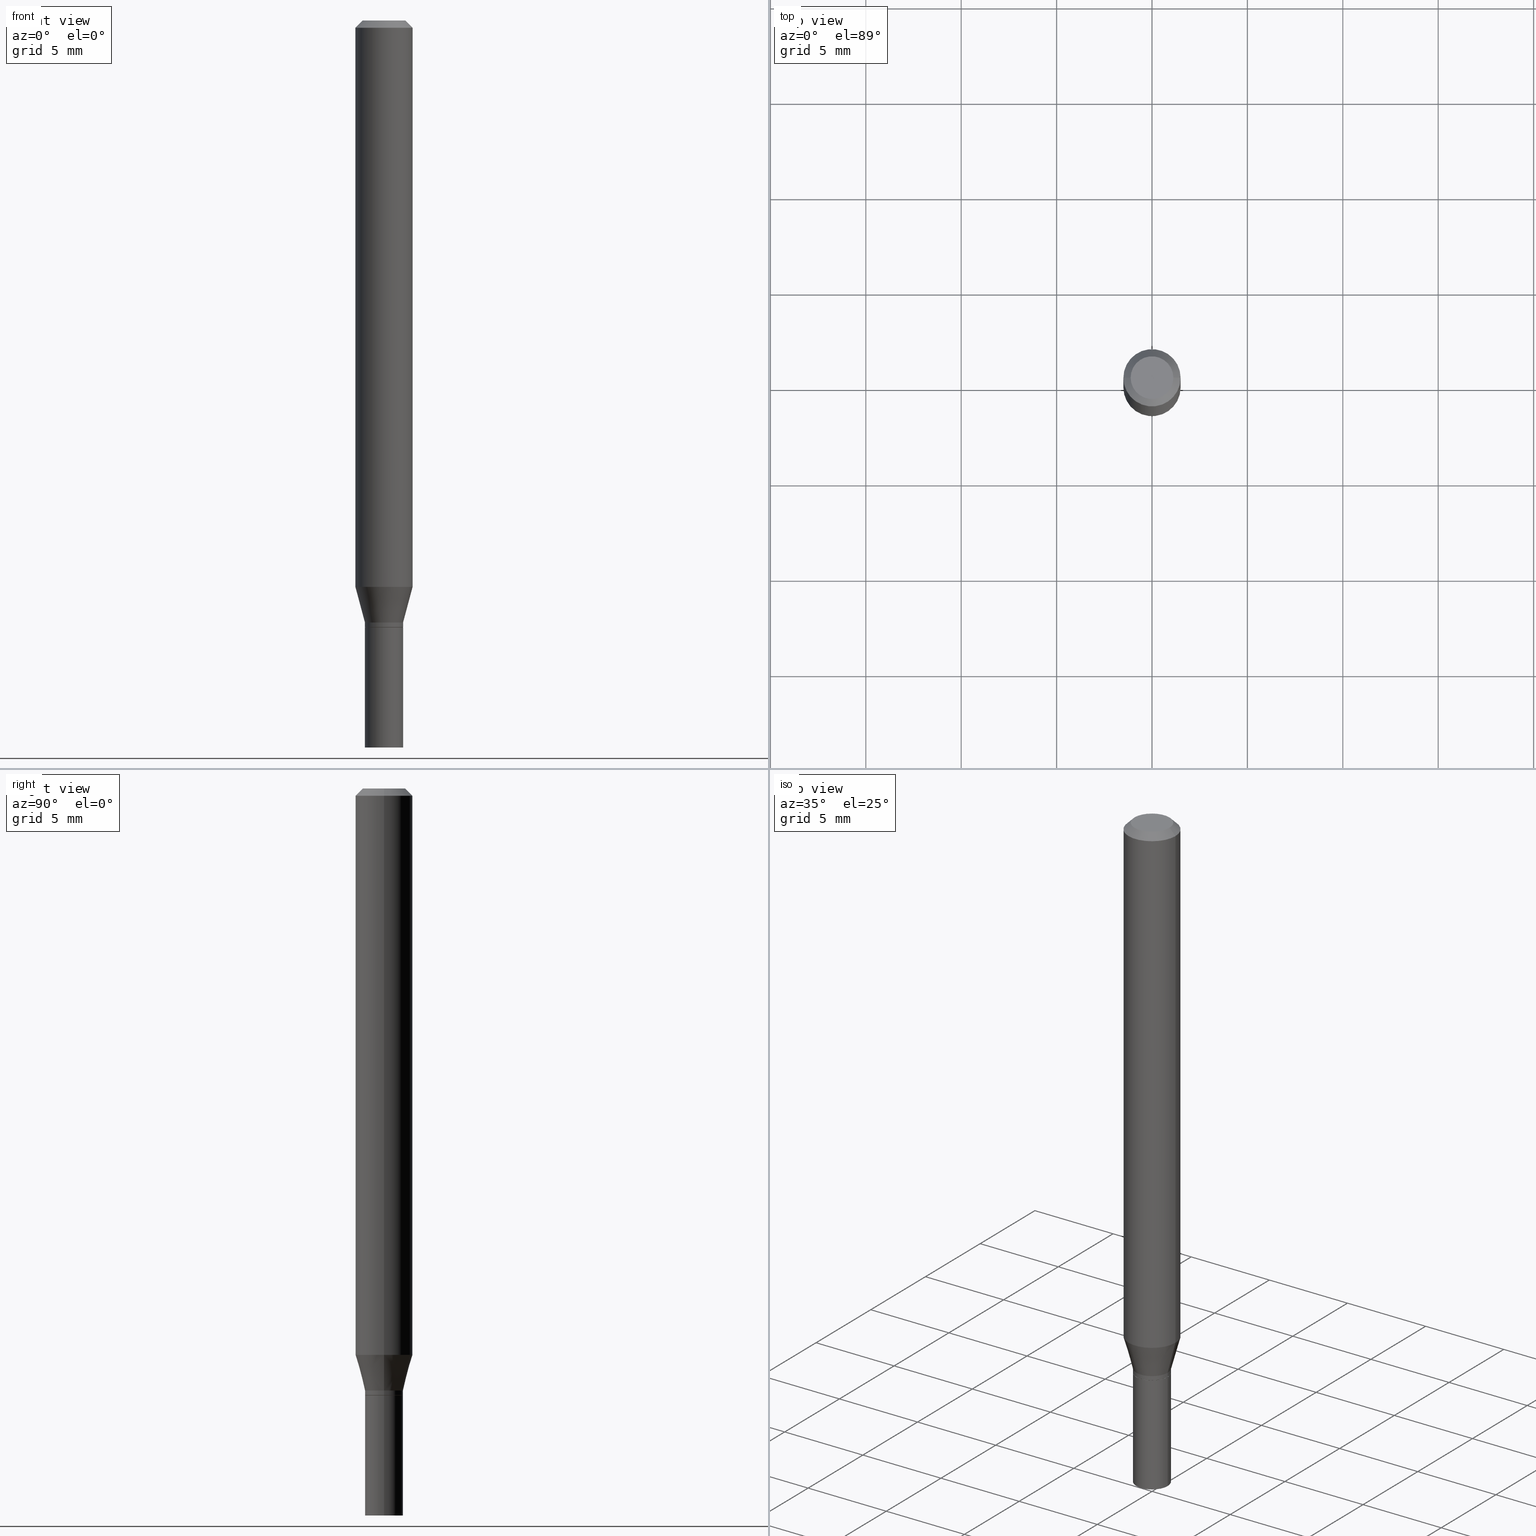
[diagram: canonical four-view strip — front | top / right | iso, engineering-drawing reading convention]
A machine part, canonical four-view strip (front | top / right | iso — engineering-drawing reading convention). The complete STEP part file that produces these views, byte-faithful:
ISO-10303-21;
HEADER;
FILE_DESCRIPTION (( 'STEP AP203' ),
    '1' );
FILE_NAME ('48502.STEP',
    '2024-03-12T19:26:06',
    ( '' ),
    ( '' ),
    'SwSTEP 2.0',
    'SolidWorks 2023',
    '' );
FILE_SCHEMA (( 'CONFIG_CONTROL_DESIGN' ));
ENDSEC;

DATA;
#1 = CARTESIAN_POINT ( 'NONE',  ( 3.061726945343791391E-29, -4.371334636231619274E-15, -1.252000000000000224 ) ) ;
#2 = CARTESIAN_POINT ( 'NONE',  ( -0.03885000000000000259, -4.095288783388819989E-15, -1.252000000000000224 ) ) ;
#3 = ORIENTED_EDGE ( 'NONE', *, *, #120, .F. ) ;
#4 = CARTESIAN_POINT ( 'NONE',  ( -0.03934999999999993364, -4.056821256321588230E-15, -1.241999999999999993 ) ) ;
#5 = VERTEX_POINT ( 'NONE', #148 ) ;
#6 = PERSON_AND_ORGANIZATION ( #271, #61 ) ;
#7 = DIRECTION ( 'NONE',  ( 1.000000000000000000, -6.982962677686269077E-15, 0.000000000000000000 ) ) ;
#8 = ORIENTED_EDGE ( 'NONE', *, *, #289, .F. ) ;
#9 = PERSON_AND_ORGANIZATION ( #271, #61 ) ;
#10 = APPROVAL ( #161, 'UNSPECIFIED' ) ;
#11 = DIRECTION ( 'NONE',  ( 1.000000000000000000, -6.982962677686266711E-15, 4.876176775795935793E-29 ) ) ;
#12 = ADVANCED_FACE ( 'NONE', ( #287 ), #362, .F. ) ;
#13 = AXIS2_PLACEMENT_3D ( 'NONE', #198, #397, #140 ) ;
#14 = DIRECTION ( 'NONE',  ( 1.000000000000000000, -6.982962677686273021E-15, 0.000000000000000000 ) ) ;
#15 = AXIS2_PLACEMENT_3D ( 'NONE', #126, #82, #361 ) ;
#16 = DIRECTION ( 'NONE',  ( -2.445468806185136597E-29, 3.491481338843145583E-15, 1.000000000000000000 ) ) ;
#17 = DIRECTION ( 'NONE',  ( 1.000000000000000000, -6.982962677686256455E-15, 0.000000000000000000 ) ) ;
#18 = CARTESIAN_POINT ( 'NONE',  ( 0.000000000000000000, 0.000000000000000000, 0.000000000000000000 ) ) ;
#19 = FACE_OUTER_BOUND ( 'NONE', #143, .T. ) ;
#20 = DIRECTION ( 'NONE',  ( 1.000000000000000000, -6.982962677686266711E-15, 0.000000000000000000 ) ) ;
#21 = DIRECTION ( 'NONE',  ( -2.445468806185136877E-29, 3.491481338843145188E-15, 1.000000000000000000 ) ) ;
#22 = AXIS2_PLACEMENT_3D ( 'NONE', #355, #252, #406 ) ;
#23 = CC_DESIGN_APPROVAL ( #419, ( #41 ) ) ;
#24 = DIRECTION ( 'NONE',  ( -2.445468806185136597E-29, 3.491481338843145583E-15, 1.000000000000000000 ) ) ;
#25 = ADVANCED_FACE ( 'NONE', ( #55 ), #110, .T. ) ;
#26 = AXIS2_PLACEMENT_3D ( 'NONE', #253, #407, #321 ) ;
#27 = CARTESIAN_POINT ( 'NONE',  ( 0.05904999999999999832, -4.123439461173740327E-16, 2.879382386107500220E-30 ) ) ;
#28 = PRODUCT_DEFINITION_FORMATION_WITH_SPECIFIED_SOURCE ( 'ANY', '', #146, .NOT_KNOWN. ) ;
#29 = EDGE_CURVE ( 'NONE', #300, #63, #363, .T. ) ;
#30 = ORIENTED_EDGE ( 'NONE', *, *, #326, .T. ) ;
#31 = CARTESIAN_POINT ( 'NONE',  ( 0.000000000000000000, 0.000000000000000000, 0.000000000000000000 ) ) ;
#32 = CALENDAR_DATE ( 2024, 12, 3 ) ;
#33 = CARTESIAN_POINT ( 'NONE',  ( 3.668203209277705088E-31, -5.237222008264718399E-17, -0.01499999999999999944 ) ) ;
#34 = AXIS2_PLACEMENT_3D ( 'NONE', #236, #239, #304 ) ;
#35 = DIRECTION ( 'NONE',  ( 1.000000000000000000, -6.982962677686269077E-15, 0.000000000000000000 ) ) ;
#36 = DIRECTION ( 'NONE',  ( -0.2588190451025224603, 5.211531920934556564E-15, 0.9659258262890678681 ) ) ;
#37 = ORIENTED_EDGE ( 'NONE', *, *, #68, .T. ) ;
#38 = CALENDAR_DATE ( 2024, 12, 3 ) ;
#39 = ORIENTED_EDGE ( 'NONE', *, *, #147, .F. ) ;
#40 = PERSON_AND_ORGANIZATION ( #271, #61 ) ;
#41 = PRODUCT_DEFINITION ( 'UNKNOWN', '', #28, #338 ) ;
#42 = ORIENTED_EDGE ( 'NONE', *, *, #88, .F. ) ;
#43 = PERSON_AND_ORGANIZATION ( #271, #61 ) ;
#44 = AXIS2_PLACEMENT_3D ( 'NONE', #18, #328, #414 ) ;
#45 = AXIS2_PLACEMENT_3D ( 'NONE', #370, #432, #436 ) ;
#46 = ORIENTED_EDGE ( 'NONE', *, *, #326, .F. ) ;
#47 = EDGE_CURVE ( 'NONE', #63, #168, #446, .T. ) ;
#48 = DIRECTION ( 'NONE',  ( 1.000000000000000000, -6.982962677686256455E-15, 0.000000000000000000 ) ) ;
#49 = LINE ( 'NONE', #286, #335 ) ;
#50 = DATE_TIME_ROLE ( 'classification_date' ) ;
#51 = DIRECTION ( 'NONE',  ( -2.445468806185136597E-29, 3.491481338843145583E-15, 1.000000000000000000 ) ) ;
#52 = DIRECTION ( 'NONE',  ( 2.438088387897960049E-29, -3.491481338843145188E-15, -1.000000000000000000 ) ) ;
#53 = PERSON_AND_ORGANIZATION_ROLE ( 'design_owner' ) ;
#54 = AXIS2_PLACEMENT_3D ( 'NONE', #112, #245, #214 ) ;
#55 = FACE_OUTER_BOUND ( 'NONE', #342, .T. ) ;
#56 = CARTESIAN_POINT ( 'NONE',  ( 0.03934999999999993364, -2.747795813669541281E-16, 1.918775561275697570E-30 ) ) ;
#57 = CIRCLE ( 'NONE', #422, 0.03935000000000000303 ) ;
#58 = PRODUCT_RELATED_PRODUCT_CATEGORY ( 'detail', '', ( #146 ) ) ;
#59 = ORIENTED_EDGE ( 'NONE', *, *, #113, .F. ) ;
#60 = CIRCLE ( 'NONE', #26, 0.03885000000000000259 ) ;
#61 = ORGANIZATION ( 'UNSPECIFIED', 'UNSPECIFIED', '' ) ;
#62 = DIRECTION ( 'NONE',  ( -2.445468806185136597E-29, 3.491481338843145583E-15, 1.000000000000000000 ) ) ;
#63 = VERTEX_POINT ( 'NONE', #441 ) ;
#64 = COORDINATED_UNIVERSAL_TIME_OFFSET ( 5, 0, .BEHIND. ) ;
#65 = EDGE_LOOP ( 'NONE', ( #400, #307 ) ) ;
#66 = UNCERTAINTY_MEASURE_WITH_UNIT (LENGTH_MEASURE( 1.000000000000000082E-05 ), #368, 'distance_accuracy_value', 'NONE');
#67 = VERTEX_POINT ( 'NONE', #79 ) ;
#68 = EDGE_CURVE ( 'NONE', #272, #386, #375, .T. ) ;
#69 = APPROVAL_DATE_TIME ( #277, #419 ) ;
#70 = DIRECTION ( 'NONE',  ( -2.445468806185136597E-29, 3.491481338843145583E-15, 1.000000000000000000 ) ) ;
#71 = ORIENTED_EDGE ( 'NONE', *, *, #279, .F. ) ;
#72 = EDGE_CURVE ( 'NONE', #234, #300, #402, .T. ) ;
#73 = EDGE_LOOP ( 'NONE', ( #46, #395, #434, #369 ) ) ;
#74 = AXIS2_PLACEMENT_3D ( 'NONE', #366, #211, #394 ) ;
#75 = FACE_OUTER_BOUND ( 'NONE', #73, .T. ) ;
#76 = LOCAL_TIME ( 15, 26, 6.000000000000000000, #64 ) ;
#77 = EDGE_CURVE ( 'NONE', #206, #67, #92, .T. ) ;
#78 = ORIENTED_EDGE ( 'NONE', *, *, #29, .F. ) ;
#79 = CARTESIAN_POINT ( 'NONE',  ( -0.03934999999999992670, -4.089990329040599164E-15, -1.251500000000000279 ) ) ;
#80 = DIRECTION ( 'NONE',  ( 1.000000000000000000, -6.982962677686265922E-15, 4.819687581474398999E-29 ) ) ;
#81 = FACE_OUTER_BOUND ( 'NONE', #225, .T. ) ;
#82 = DIRECTION ( 'NONE',  ( -2.445468806185136597E-29, 3.491481338843145583E-15, 1.000000000000000000 ) ) ;
#83 = AXIS2_PLACEMENT_3D ( 'NONE', #219, #111, #20 ) ;
#84 = CIRCLE ( 'NONE', #448, 0.03885000000000000259 ) ;
#85 = DIRECTION ( 'NONE',  ( 1.000000000000000000, -6.982962677686266711E-15, 4.876176775795935793E-29 ) ) ;
#86 = CC_DESIGN_DATE_AND_TIME_ASSIGNMENT ( #269, #235, ( #41 ) ) ;
#87 = CARTESIAN_POINT ( 'NONE',  ( 2.857477964771687854E-29, -4.079721223563435908E-15, -1.168478599090893466 ) ) ;
#88 = EDGE_CURVE ( 'NONE', #300, #234, #299, .T. ) ;
#89 = AXIS2_PLACEMENT_3D ( 'NONE', #450, #443, #426 ) ;
#90 = DIRECTION ( 'NONE',  ( -2.445468806185136597E-29, 3.491481338843145583E-15, 1.000000000000000000 ) ) ;
#91 = VERTEX_POINT ( 'NONE', #129 ) ;
#92 = CIRCLE ( 'NONE', #13, 0.03934999999999992670 ) ;
#93 = CALENDAR_DATE ( 2024, 12, 3 ) ;
#94 = ORIENTED_EDGE ( 'NONE', *, *, #47, .T. ) ;
#95 = LINE ( 'NONE', #344, #154 ) ;
#96 = EDGE_CURVE ( 'NONE', #274, #206, #266, .T. ) ;
#97 = ORIENTED_EDGE ( 'NONE', *, *, #213, .F. ) ;
#98 = CIRCLE ( 'NONE', #83, 0.05904999999999999832 ) ;
#99 = FACE_OUTER_BOUND ( 'NONE', #164, .T. ) ;
#100 = CARTESIAN_POINT ( 'NONE',  ( -0.03934999999999993364, -3.858483497209341928E-15, -1.241999999999999993 ) ) ;
#101 = ORIENTED_EDGE ( 'NONE', *, *, #425, .F. ) ;
#102 = ADVANCED_FACE ( 'NONE', ( #424 ), #184, .T. ) ;
#103 = CARTESIAN_POINT ( 'NONE',  ( 0.04404999999999999888, -3.798447818264454163E-16, 3.533548453838733521E-16 ) ) ;
#104 = CARTESIAN_POINT ( 'NONE',  ( -8.641182519006283330E-45, 1.233731848647590289E-30, 3.533548453838708869E-16 ) ) ;
#105 = VERTEX_POINT ( 'NONE', #390 ) ;
#106 = PERSON_AND_ORGANIZATION_ROLE ( 'creator' ) ;
#107 = ORIENTED_EDGE ( 'NONE', *, *, #228, .T. ) ;
#108 = CARTESIAN_POINT ( 'NONE',  ( 2.857477964771687854E-29, -4.079721223563435908E-15, -1.168478599090893466 ) ) ;
#109 = AXIS2_PLACEMENT_3D ( 'NONE', #310, #210, #7 ) ;
#110 = CYLINDRICAL_SURFACE ( 'NONE', #44, 0.05904999999999999832 ) ;
#111 = DIRECTION ( 'NONE',  ( -2.445468806185136597E-29, 3.491481338843145583E-15, 1.000000000000000000 ) ) ;
#112 = CARTESIAN_POINT ( 'NONE',  ( 3.060504210940699150E-29, -4.369588895562197771E-15, -1.251500000000000279 ) ) ;
#113 = EDGE_CURVE ( 'NONE', #91, #67, #465, .T. ) ;
#114 = DIRECTION ( 'NONE',  ( -0.7071067811865392461, 2.468850131082170286E-15, -0.7071067811865557884 ) ) ;
#115 = CONICAL_SURFACE ( 'NONE', #201, 0.03885000000000000259, 0.7853981633974739252 ) ;
#116 = SECURITY_CLASSIFICATION ( '', '', #314 ) ;
#117 = EDGE_CURVE ( 'NONE', #237, #272, #431, .T. ) ;
#118 = CYLINDRICAL_SURFACE ( 'NONE', #89, 0.03935000000000000303 ) ;
#119 = DIRECTION ( 'NONE',  ( -1.000000000000000000, 6.982962677686265922E-15, -4.876176775795935793E-29 ) ) ;
#120 = EDGE_CURVE ( 'NONE', #105, #386, #95, .T. ) ;
#121 = LENGTH_MEASURE_WITH_UNIT ( LENGTH_MEASURE( 0.02539999999999999897 ), #409 );
#122 = ORIENTED_EDGE ( 'NONE', *, *, #181, .T. ) ;
#123 = VECTOR ( 'NONE', #135, 39.37007874015748143 ) ;
#124 = ORIENTED_EDGE ( 'NONE', *, *, #258, .F. ) ;
#125 = AXIS2_PLACEMENT_3D ( 'NONE', #218, #90, #17 ) ;
#126 = CARTESIAN_POINT ( 'NONE',  ( 0.000000000000000000, 0.000000000000000000, 0.000000000000000000 ) ) ;
#127 = ADVANCED_FACE ( 'NONE', ( #99 ), #282, .T. ) ;
#128 = DIRECTION ( 'NONE',  ( -2.445468806185136597E-29, 3.491481338843145583E-15, 1.000000000000000000 ) ) ;
#129 = CARTESIAN_POINT ( 'NONE',  ( -0.03885000000000000259, -4.092639556214709577E-15, -1.252000000000000224 ) ) ;
#130 = ORIENTED_EDGE ( 'NONE', *, *, #96, .T. ) ;
#131 = CC_DESIGN_APPROVAL ( #412, ( #28 ) ) ;
#132 = DIRECTION ( 'NONE',  ( -1.000000000000000000, 6.982962677686266711E-15, 0.000000000000000000 ) ) ;
#133 = ORIENTED_EDGE ( 'NONE', *, *, #68, .F. ) ;
#134 = DIRECTION ( 'NONE',  ( 1.000000000000000000, -6.982962677686256455E-15, 0.000000000000000000 ) ) ;
#135 = DIRECTION ( 'NONE',  ( -0.7071067811865656694, 7.493145998870420424E-15, 0.7071067811865294761 ) ) ;
#136 = CARTESIAN_POINT ( 'NONE',  ( 0.03935000000000000303, -5.512001589631673094E-15, -1.500000000000000222 ) ) ;
#137 = ORIENTED_EDGE ( 'NONE', *, *, #117, .F. ) ;
#138 = ORIENTED_EDGE ( 'NONE', *, *, #47, .F. ) ;
#139 = CC_DESIGN_PERSON_AND_ORGANIZATION_ASSIGNMENT ( #43, #170, ( #28 ) ) ;
#140 = DIRECTION ( 'NONE',  ( 1.000000000000000000, -6.982962677686258033E-15, 0.000000000000000000 ) ) ;
#141 = ORIENTED_EDGE ( 'NONE', *, *, #181, .F. ) ;
#142 = PERSON_AND_ORGANIZATION_ROLE ( 'classification_officer' ) ;
#143 = EDGE_LOOP ( 'NONE', ( #3, #296, #403, #212 ) ) ;
#144 = CARTESIAN_POINT ( 'NONE',  ( -8.641182519006283330E-45, 1.233731848647590289E-30, 3.533548453838708869E-16 ) ) ;
#145 = DIRECTION ( 'NONE',  ( -2.445468806185136597E-29, 3.491481338843145583E-15, 1.000000000000000000 ) ) ;
#146 = PRODUCT ( '48502', '48502', '', ( #404 ) ) ;
#147 = EDGE_CURVE ( 'NONE', #91, #274, #60, .T. ) ;
#148 = CARTESIAN_POINT ( 'NONE',  ( -0.04404999999999999888, 3.337856159934040055E-16, 3.533548453838686682E-16 ) ) ;
#149 = ADVANCED_FACE ( 'NONE', ( #81 ), #215, .F. ) ;
#150 = AXIS2_PLACEMENT_3D ( 'NONE', #381, #62, #232 ) ;
#151 = DIRECTION ( 'NONE',  ( 1.000000000000000000, -6.982962677686265922E-15, 4.876176775795935793E-29 ) ) ;
#152 = APPLICATION_PROTOCOL_DEFINITION ( 'international standard', 'config_control_design', 1994, #421 ) ;
#153 = EDGE_CURVE ( 'NONE', #63, #188, #451, .T. ) ;
#154 = VECTOR ( 'NONE', #240, 39.37007874015748143 ) ;
#155 = CONICAL_SURFACE ( 'NONE', #125, 0.03885000000000000259, 0.7853981633974739252 ) ;
#156 = EDGE_LOOP ( 'NONE', ( #101, #39 ) ) ;
#157 = CARTESIAN_POINT ( 'NONE',  ( 3.668203209277704895E-29, -5.237222008264718177E-15, -1.500000000000000222 ) ) ;
#158 = CC_DESIGN_PERSON_AND_ORGANIZATION_ASSIGNMENT ( #6, #142, ( #116 ) ) ;
#159 = EDGE_LOOP ( 'NONE', ( #349, #193, #280, #398 ) ) ;
#160 = EDGE_CURVE ( 'NONE', #386, #272, #57, .T. ) ;
#161 = APPROVAL_STATUS ( 'not_yet_approved' ) ;
#162 = DIRECTION ( 'NONE',  ( 2.445468806185136597E-29, -3.491481338843145583E-15, -1.000000000000000000 ) ) ;
#163 = CARTESIAN_POINT ( 'NONE',  ( 0.03935000000000000303, -4.646114217598574191E-15, -1.252000000000000224 ) ) ;
#164 = EDGE_LOOP ( 'NONE', ( #311, #30, #42, #378 ) ) ;
#165 = COORDINATED_UNIVERSAL_TIME_OFFSET ( 5, 0, .BEHIND. ) ;
#166 = ORIENTED_EDGE ( 'NONE', *, *, #442, .F. ) ;
#167 = PERSON_AND_ORGANIZATION ( #271, #61 ) ;
#168 = VERTEX_POINT ( 'NONE', #461 ) ;
#169 = AXIS2_PLACEMENT_3D ( 'NONE', #356, #52, #177 ) ;
#170 = PERSON_AND_ORGANIZATION_ROLE ( 'design_supplier' ) ;
#171 = CC_DESIGN_APPROVAL ( #10, ( #116 ) ) ;
#172 = ORIENTED_EDGE ( 'NONE', *, *, #153, .T. ) ;
#173 = FACE_OUTER_BOUND ( 'NONE', #65, .T. ) ;
#174 = PERSON_AND_ORGANIZATION ( #271, #61 ) ;
#175 = DIRECTION ( 'NONE',  ( 0.2588190451025224603, 1.565188264969613685E-15, 0.9659258262890678681 ) ) ;
#176 = ADVANCED_FACE ( 'NONE', ( #371 ), #115, .T. ) ;
#177 = DIRECTION ( 'NONE',  ( -1.000000000000000000, 6.982962677686265922E-15, -4.876176775795935793E-29 ) ) ;
#178 = ADVANCED_FACE ( 'NONE', ( #173 ), #308, .F. ) ;
#179 = AXIS2_PLACEMENT_3D ( 'NONE', #320, #256, #151 ) ;
#180 = AXIS2_PLACEMENT_3D ( 'NONE', #365, #331, #187 ) ;
#181 = EDGE_CURVE ( 'NONE', #188, #259, #392, .T. ) ;
#182 =( NAMED_UNIT ( * ) PLANE_ANGLE_UNIT ( ) SI_UNIT ( $, .RADIAN. ) );
#183 = APPLICATION_CONTEXT ( 'configuration controlled 3d designs of mechanical parts and assemblies' ) ;
#184 = CONICAL_SURFACE ( 'NONE', #150, 0.03934999999999993364, 0.2617993877991511842 ) ;
#185 = AXIS2_PLACEMENT_3D ( 'NONE', #420, #458, #380 ) ;
#186 = MANIFOLD_SOLID_BREP ( 'Body-Move/Copy2[2]', #359 ) ;
#187 = DIRECTION ( 'NONE',  ( 1.000000000000000000, -6.982962677686269077E-15, 0.000000000000000000 ) ) ;
#188 = VERTEX_POINT ( 'NONE', #327 ) ;
#189 = EDGE_CURVE ( 'NONE', #206, #300, #413, .T. ) ;
#190 = ORIENTED_EDGE ( 'NONE', *, *, #273, .F. ) ;
#191 = CC_DESIGN_PERSON_AND_ORGANIZATION_ASSIGNMENT ( #358, #53, ( #146 ) ) ;
#192 = AXIS2_PLACEMENT_3D ( 'NONE', #87, #24, #220 ) ;
#193 = ORIENTED_EDGE ( 'NONE', *, *, #113, .T. ) ;
#194 = AXIS2_PLACEMENT_3D ( 'NONE', #33, #162, #132 ) ;
#195 = CARTESIAN_POINT ( 'NONE',  ( -0.03935000000000000303, -4.524679755726570119E-15, -1.252000000000000224 ) ) ;
#196 = ADVANCED_FACE ( 'NONE', ( #449 ), #118, .T. ) ;
#197 = DIRECTION ( 'NONE',  ( 1.000000000000000000, -6.982962677686269077E-15, 0.000000000000000000 ) ) ;
#198 = CARTESIAN_POINT ( 'NONE',  ( 3.060504210940699150E-29, -4.369588895562197771E-15, -1.251500000000000279 ) ) ;
#199 = APPROVAL_DATE_TIME ( #384, #10 ) ;
#200 = ORIENTED_EDGE ( 'NONE', *, *, #153, .F. ) ;
#201 = AXIS2_PLACEMENT_3D ( 'NONE', #455, #346, #48 ) ;
#202 = EDGE_LOOP ( 'NONE', ( #429, #354, #138, #78 ) ) ;
#203 = COORDINATED_UNIVERSAL_TIME_OFFSET ( 5, 0, .BEHIND. ) ;
#204 = LINE ( 'NONE', #244, #221 ) ;
#205 = ORIENTED_EDGE ( 'NONE', *, *, #160, .T. ) ;
#206 = VERTEX_POINT ( 'NONE', #261 ) ;
#207 = AXIS2_PLACEMENT_3D ( 'NONE', #323, #16, #85 ) ;
#208 = APPROVAL_PERSON_ORGANIZATION ( #324, #419, #373 ) ;
#209 = COORDINATED_UNIVERSAL_TIME_OFFSET ( 5, 0, .BEHIND. ) ;
#210 = DIRECTION ( 'NONE',  ( -2.445468806185136597E-29, 3.491481338843145583E-15, 1.000000000000000000 ) ) ;
#211 = DIRECTION ( 'NONE',  ( -2.445468806185136597E-29, 3.491481338843145583E-15, 1.000000000000000000 ) ) ;
#212 = ORIENTED_EDGE ( 'NONE', *, *, #160, .F. ) ;
#213 = EDGE_CURVE ( 'NONE', #168, #259, #290, .T. ) ;
#214 = DIRECTION ( 'NONE',  ( 1.000000000000000000, -6.982962677686258033E-15, 0.000000000000000000 ) ) ;
#215 = PLANE ( 'NONE',  #169 ) ;
#216 = CARTESIAN_POINT ( 'NONE',  ( 3.037272257281939846E-29, -4.336419822843186836E-15, -1.241999999999999993 ) ) ;
#217 = CIRCLE ( 'NONE', #275, 0.04404999999999999888 ) ;
#218 = CARTESIAN_POINT ( 'NONE',  ( 3.061726945343791391E-29, -4.371334636231619274E-15, -1.252000000000000224 ) ) ;
#219 = CARTESIAN_POINT ( 'NONE',  ( 3.668203209277705088E-31, -5.237222008264718399E-17, -0.01499999999999999944 ) ) ;
#220 = DIRECTION ( 'NONE',  ( 1.000000000000000000, -6.982962677686273021E-15, 0.000000000000000000 ) ) ;
#221 = VECTOR ( 'NONE', #399, 39.37007874015748143 ) ;
#222 = CC_DESIGN_PERSON_AND_ORGANIZATION_ASSIGNMENT ( #40, #309, ( #28 ) ) ;
#223 = EDGE_LOOP ( 'NONE', ( #345, #464, #316, #8 ) ) ;
#224 = DIRECTION ( 'NONE',  ( 1.000000000000000000, -6.982962677686269077E-15, 0.000000000000000000 ) ) ;
#225 = EDGE_LOOP ( 'NONE', ( #37, #205 ) ) ;
#226 = FACE_OUTER_BOUND ( 'NONE', #268, .T. ) ;
#227 = CC_DESIGN_DATE_AND_TIME_ASSIGNMENT ( #353, #50, ( #116 ) ) ;
#228 = EDGE_CURVE ( 'NONE', #237, #105, #254, .T. ) ;
#229 = AXIS2_PLACEMENT_3D ( 'NONE', #216, #51, #408 ) ;
#230 = CONICAL_SURFACE ( 'NONE', #194, 0.05904999999999999832, 0.7853981633974366217 ) ;
#231 = APPLICATION_PROTOCOL_DEFINITION ( 'international standard', 'config_control_design', 1994, #183 ) ;
#232 = DIRECTION ( 'NONE',  ( 1.000000000000000000, -6.982962677686269077E-15, 0.000000000000000000 ) ) ;
#233 = DIRECTION ( 'NONE',  ( -2.445468806185136877E-29, 3.491481338843145188E-15, 1.000000000000000000 ) ) ;
#234 = VERTEX_POINT ( 'NONE', #100 ) ;
#235 = DATE_TIME_ROLE ( 'creation_date' ) ;
#236 = CARTESIAN_POINT ( 'NONE',  ( 3.061726945343791391E-29, -4.371334636231619274E-15, -1.252000000000000224 ) ) ;
#237 = VERTEX_POINT ( 'NONE', #136 ) ;
#238 = COORDINATED_UNIVERSAL_TIME_OFFSET ( 5, 0, .BEHIND. ) ;
#239 = DIRECTION ( 'NONE',  ( -2.438088387897960049E-29, 3.491481338843145188E-15, 1.000000000000000000 ) ) ;
#240 = DIRECTION ( 'NONE',  ( -2.445468806185136877E-29, 3.491481338843145188E-15, 1.000000000000000000 ) ) ;
#241 = VERTEX_POINT ( 'NONE', #103 ) ;
#242 = CC_DESIGN_PERSON_AND_ORGANIZATION_ASSIGNMENT ( #9, #106, ( #41 ) ) ;
#243 = CALENDAR_DATE ( 2024, 12, 3 ) ;
#244 = CARTESIAN_POINT ( 'NONE',  ( 0.05904999999999999832, -4.574846268510561447E-16, -0.01499999999999999944 ) ) ;
#245 = DIRECTION ( 'NONE',  ( -2.445468806185136597E-29, 3.491481338843145583E-15, 1.000000000000000000 ) ) ;
#246 = EDGE_LOOP ( 'NONE', ( #94, #454, #141, #200 ) ) ;
#247 = CYLINDRICAL_SURFACE ( 'NONE', #433, 0.03934999999999993364 ) ;
#248 = ADVANCED_FACE ( 'NONE', ( #75 ), #247, .T. ) ;
#249 = EDGE_LOOP ( 'NONE', ( #382, #302 ) ) ;
#250 = VECTOR ( 'NONE', #297, 39.37007874015748143 ) ;
#251 = EDGE_CURVE ( 'NONE', #234, #168, #391, .T. ) ;
#252 = DIRECTION ( 'NONE',  ( -2.445468806185136597E-29, 3.491481338843145583E-15, 1.000000000000000000 ) ) ;
#253 = CARTESIAN_POINT ( 'NONE',  ( 3.061726945343791391E-29, -4.371334636231619274E-15, -1.252000000000000224 ) ) ;
#254 = CIRCLE ( 'NONE', #109, 0.03935000000000000303 ) ;
#255 =( GEOMETRIC_REPRESENTATION_CONTEXT ( 3 ) GLOBAL_UNCERTAINTY_ASSIGNED_CONTEXT ( ( #66 ) ) GLOBAL_UNIT_ASSIGNED_CONTEXT ( ( #368, #182, #295 ) ) REPRESENTATION_CONTEXT ( 'NONE', 'WORKASPACE' ) );
#256 = DIRECTION ( 'NONE',  ( -2.438088387897960049E-29, 3.491481338843145188E-15, 1.000000000000000000 ) ) ;
#257 = CARTESIAN_POINT ( 'NONE',  ( -0.03934999999999993364, 2.795985665215989516E-16, -1.935600958015302139E-30 ) ) ;
#258 = EDGE_CURVE ( 'NONE', #241, #188, #204, .T. ) ;
#259 = VERTEX_POINT ( 'NONE', #401 ) ;
#260 = VECTOR ( 'NONE', #428, 39.37007874015748143 ) ;
#261 = CARTESIAN_POINT ( 'NONE',  ( 0.03934999999999992670, -4.644368476929151899E-15, -1.251500000000000279 ) ) ;
#262 = EDGE_CURVE ( 'NONE', #5, #241, #217, .T. ) ;
#263 = ORIENTED_EDGE ( 'NONE', *, *, #289, .T. ) ;
#264 = CARTESIAN_POINT ( 'NONE',  ( 3.061726945343791391E-29, -4.371334636231619274E-15, -1.252000000000000224 ) ) ;
#265 = ORIENTED_EDGE ( 'NONE', *, *, #273, .T. ) ;
#266 = LINE ( 'NONE', #298, #462 ) ;
#267 = APPROVAL_PERSON_ORGANIZATION ( #167, #412, #388 ) ;
#268 = EDGE_LOOP ( 'NONE', ( #166, #427, #122, #71 ) ) ;
#269 = DATE_AND_TIME ( #38, #313 ) ;
#270 = CARTESIAN_POINT ( 'NONE',  ( 0.03935000000000000303, -2.747795813669546211E-16, 1.918775561275701074E-30 ) ) ;
#271 = PERSON ( 'UNSPECIFIED', 'UNSPECIFIED', 'UNSPECIFIED', ('UNSPECIFIED'), ('UNSPECIFIED'), ('UNSPECIFIED') ) ;
#272 = VERTEX_POINT ( 'NONE', #163 ) ;
#273 = EDGE_CURVE ( 'NONE', #259, #188, #98, .T. ) ;
#274 = VERTEX_POINT ( 'NONE', #445 ) ;
#275 = AXIS2_PLACEMENT_3D ( 'NONE', #144, #281, #438 ) ;
#276 = CC_DESIGN_SECURITY_CLASSIFICATION ( #116, ( #28 ) ) ;
#277 = DATE_AND_TIME ( #243, #293 ) ;
#278 = ORIENTED_EDGE ( 'NONE', *, *, #120, .T. ) ;
#279 = EDGE_CURVE ( 'NONE', #5, #259, #49, .T. ) ;
#280 = ORIENTED_EDGE ( 'NONE', *, *, #77, .F. ) ;
#281 = DIRECTION ( 'NONE',  ( -2.445468806185136597E-29, 3.491481338843145583E-15, 1.000000000000000000 ) ) ;
#282 = CYLINDRICAL_SURFACE ( 'NONE', #207, 0.03934999999999993364 ) ;
#283 = VECTOR ( 'NONE', #175, 39.37007874015748143 ) ;
#284 = PRODUCT_DEFINITION_SHAPE ( 'NONE', 'NONE',  #41 ) ;
#285 = CARTESIAN_POINT ( 'NONE',  ( 0.03934999999999993364, -4.611199404210140965E-15, -1.241999999999999993 ) ) ;
#286 = CARTESIAN_POINT ( 'NONE',  ( -0.05904999999999999832, 3.599717260347268549E-16, -0.01499999999999999944 ) ) ;
#287 = FACE_OUTER_BOUND ( 'NONE', #249, .T. ) ;
#288 = CIRCLE ( 'NONE', #453, 0.04404999999999999888 ) ;
#289 = EDGE_CURVE ( 'NONE', #168, #63, #410, .T. ) ;
#290 = LINE ( 'NONE', #319, #292 ) ;
#291 = CARTESIAN_POINT ( 'NONE',  ( 0.03934999999999993364, -4.611199404210140965E-15, -1.241999999999999993 ) ) ;
#292 = VECTOR ( 'NONE', #233, 39.37007874015748143 ) ;
#293 = LOCAL_TIME ( 15, 26, 6.000000000000000000, #203 ) ;
#294 = DIMENSIONAL_EXPONENTS ( 1.000000000000000000, 0.000000000000000000, 0.000000000000000000, 0.000000000000000000, 0.000000000000000000, 0.000000000000000000, 0.000000000000000000 ) ;
#295 =( NAMED_UNIT ( * ) SI_UNIT ( $, .STERADIAN. ) SOLID_ANGLE_UNIT ( ) );
#296 = ORIENTED_EDGE ( 'NONE', *, *, #357, .T. ) ;
#297 = DIRECTION ( 'NONE',  ( -2.445468806185136877E-29, 3.491481338843145188E-15, 1.000000000000000000 ) ) ;
#298 = CARTESIAN_POINT ( 'NONE',  ( 0.03885000000000000259, -4.642622736259730395E-15, -1.252000000000000224 ) ) ;
#299 = CIRCLE ( 'NONE', #415, 0.03934999999999993364 ) ;
#300 = VERTEX_POINT ( 'NONE', #291 ) ;
#301 = DIRECTION ( 'NONE',  ( 2.438088387897960049E-29, -3.491481338843145188E-15, -1.000000000000000000 ) ) ;
#302 = ORIENTED_EDGE ( 'NONE', *, *, #357, .F. ) ;
#303 = CALENDAR_DATE ( 2024, 12, 3 ) ;
#304 = DIRECTION ( 'NONE',  ( 1.000000000000000000, -6.982962677686265922E-15, 4.876176775795935793E-29 ) ) ;
#305 = DIRECTION ( 'NONE',  ( 0.7071067811865656694, -2.468850131082446387E-15, 0.7071067811865294761 ) ) ;
#306 = CARTESIAN_POINT ( 'NONE',  ( 0.000000000000000000, 0.000000000000000000, 0.000000000000000000 ) ) ;
#307 = ORIENTED_EDGE ( 'NONE', *, *, #442, .T. ) ;
#308 = PLANE ( 'NONE',  #341 ) ;
#309 = PERSON_AND_ORGANIZATION_ROLE ( 'creator' ) ;
#310 = CARTESIAN_POINT ( 'NONE',  ( 3.668203209277704895E-29, -5.237222008264718177E-15, -1.500000000000000222 ) ) ;
#311 = ORIENTED_EDGE ( 'NONE', *, *, #77, .T. ) ;
#312 = AXIS2_PLACEMENT_3D ( 'NONE', #108, #145, #14 ) ;
#313 = LOCAL_TIME ( 15, 26, 6.000000000000000000, #238 ) ;
#314 = SECURITY_CLASSIFICATION_LEVEL ( 'unclassified' ) ;
#315 = DIRECTION ( 'NONE',  ( -2.445468806185136597E-29, 3.491481338843145583E-15, 1.000000000000000000 ) ) ;
#316 = ORIENTED_EDGE ( 'NONE', *, *, #29, .T. ) ;
#317 = APPROVAL_ROLE ( '' ) ;
#318 = CYLINDRICAL_SURFACE ( 'NONE', #45, 0.05904999999999999832 ) ;
#319 = CARTESIAN_POINT ( 'NONE',  ( -0.05904999999999999832, 4.195754854663391478E-16, -2.904631170795521892E-30 ) ) ;
#320 = CARTESIAN_POINT ( 'NONE',  ( 3.576687321579069994E-29, -5.368277968210015545E-15, -1.500000000000000222 ) ) ;
#321 = DIRECTION ( 'NONE',  ( 1.000000000000000000, -6.982962677686256455E-15, 0.000000000000000000 ) ) ;
#322 = CONICAL_SURFACE ( 'NONE', #180, 0.03934999999999993364, 0.2617993877991511842 ) ;
#323 = CARTESIAN_POINT ( 'NONE',  ( 0.000000000000000000, 0.000000000000000000, 0.000000000000000000 ) ) ;
#324 = PERSON_AND_ORGANIZATION ( #271, #61 ) ;
#325 = LINE ( 'NONE', #257, #411 ) ;
#326 = EDGE_CURVE ( 'NONE', #67, #234, #325, .T. ) ;
#327 = CARTESIAN_POINT ( 'NONE',  ( 0.05904999999999999832, -4.647161662000212105E-16, -0.01499999999999999944 ) ) ;
#328 = DIRECTION ( 'NONE',  ( -2.445468806185136597E-29, 3.491481338843145583E-15, 1.000000000000000000 ) ) ;
#329 = ADVANCED_FACE ( 'NONE', ( #416 ), #322, .T. ) ;
#330 = VECTOR ( 'NONE', #21, 39.37007874015748143 ) ;
#331 = DIRECTION ( 'NONE',  ( -2.445468806185136597E-29, 3.491481338843145583E-15, 1.000000000000000000 ) ) ;
#332 = ADVANCED_FACE ( 'NONE', ( #333 ), #155, .T. ) ;
#333 = FACE_OUTER_BOUND ( 'NONE', #159, .T. ) ;
#334 = APPROVAL_STATUS ( 'not_yet_approved' ) ;
#335 = VECTOR ( 'NONE', #114, 39.37007874015748143 ) ;
#336 = LOCAL_TIME ( 15, 26, 6.000000000000000000, #165 ) ;
#337 = EDGE_LOOP ( 'NONE', ( #107, #278, #133, #137 ) ) ;
#338 = DESIGN_CONTEXT ( 'detailed design', #183, 'design' ) ;
#339 = MANIFOLD_SOLID_BREP ( 'Body-Move/Copy2[1]', #447 ) ;
#340 = SHAPE_DEFINITION_REPRESENTATION ( #284, #387 ) ;
#341 = AXIS2_PLACEMENT_3D ( 'NONE', #396, #301, #119 ) ;
#342 = EDGE_LOOP ( 'NONE', ( #97, #263, #172, #190 ) ) ;
#343 = FACE_OUTER_BOUND ( 'NONE', #156, .T. ) ;
#344 = CARTESIAN_POINT ( 'NONE',  ( -0.03935000000000000303, 2.795985665215994447E-16, -1.935600958015305291E-30 ) ) ;
#345 = ORIENTED_EDGE ( 'NONE', *, *, #251, .F. ) ;
#346 = DIRECTION ( 'NONE',  ( -2.445468806185136597E-29, 3.491481338843145583E-15, 1.000000000000000000 ) ) ;
#347 = APPROVAL_DATE_TIME ( #430, #412 ) ;
#348 = ADVANCED_FACE ( 'NONE', ( #19 ), #452, .T. ) ;
#349 = ORIENTED_EDGE ( 'NONE', *, *, #425, .T. ) ;
#350 = APPROVAL_STATUS ( 'not_yet_approved' ) ;
#351 = ORIENTED_EDGE ( 'NONE', *, *, #457, .F. ) ;
#352 = CIRCLE ( 'NONE', #54, 0.03934999999999992670 ) ;
#353 = DATE_AND_TIME ( #32, #463 ) ;
#354 = ORIENTED_EDGE ( 'NONE', *, *, #251, .T. ) ;
#355 = CARTESIAN_POINT ( 'NONE',  ( 3.061726945343791391E-29, -4.371334636231619274E-15, -1.252000000000000224 ) ) ;
#356 = CARTESIAN_POINT ( 'NONE',  ( 2.747795813669852388E-16, 0.03934999999999563153, -1.252000000000000446 ) ) ;
#357 = EDGE_CURVE ( 'NONE', #105, #237, #405, .T. ) ;
#358 = PERSON_AND_ORGANIZATION ( #271, #61 ) ;
#359 = CLOSED_SHELL ( 'NONE', ( #127, #332, #360, #439, #329, #102, #25, #383, #178, #385, #176, #248 ) ) ;
#360 = ADVANCED_FACE ( 'NONE', ( #226 ), #393, .T. ) ;
#361 = DIRECTION ( 'NONE',  ( 1.000000000000000000, -6.982962677686266711E-15, 4.876176775795936353E-29 ) ) ;
#362 = PLANE ( 'NONE',  #179 ) ;
#363 = LINE ( 'NONE', #285, #283 ) ;
#364 = DIRECTION ( 'NONE',  ( 1.000000000000000000, 0.000000000000000000, 0.000000000000000000 ) ) ;
#365 = CARTESIAN_POINT ( 'NONE',  ( 3.037272257281939846E-29, -4.336419822843186836E-15, -1.241999999999999993 ) ) ;
#366 = CARTESIAN_POINT ( 'NONE',  ( 3.668203209277705088E-31, -5.237222008264718399E-17, -0.01499999999999999944 ) ) ;
#367 = DIRECTION ( 'NONE',  ( -2.445468806185136877E-29, 3.491481338843145188E-15, 1.000000000000000000 ) ) ;
#368 =( CONVERSION_BASED_UNIT ( 'INCH', #121 ) LENGTH_UNIT ( ) NAMED_UNIT ( #294 ) );
#369 = ORIENTED_EDGE ( 'NONE', *, *, #72, .F. ) ;
#370 = CARTESIAN_POINT ( 'NONE',  ( 0.000000000000000000, 0.000000000000000000, 0.000000000000000000 ) ) ;
#371 = FACE_OUTER_BOUND ( 'NONE', #372, .T. ) ;
#372 = EDGE_LOOP ( 'NONE', ( #59, #466, #130, #351 ) ) ;
#373 = APPROVAL_ROLE ( '' ) ;
#374 = PLANE ( 'NONE',  #34 ) ;
#375 = CIRCLE ( 'NONE', #22, 0.03935000000000000303 ) ;
#376 = CARTESIAN_POINT ( 'NONE',  ( 3.037272257281939846E-29, -4.336419822843186836E-15, -1.241999999999999993 ) ) ;
#377 = APPROVAL_PERSON_ORGANIZATION ( #174, #10, #317 ) ;
#378 = ORIENTED_EDGE ( 'NONE', *, *, #189, .F. ) ;
#379 = DIRECTION ( 'NONE',  ( -2.445468806185136597E-29, 3.491481338843145583E-15, 1.000000000000000000 ) ) ;
#380 = DIRECTION ( 'NONE',  ( -1.000000000000000000, 6.982962677686266711E-15, 0.000000000000000000 ) ) ;
#381 = CARTESIAN_POINT ( 'NONE',  ( 3.037272257281939846E-29, -4.336419822843186836E-15, -1.241999999999999993 ) ) ;
#382 = ORIENTED_EDGE ( 'NONE', *, *, #228, .F. ) ;
#383 = ADVANCED_FACE ( 'NONE', ( #456 ), #230, .T. ) ;
#384 = DATE_AND_TIME ( #93, #76 ) ;
#385 = ADVANCED_FACE ( 'NONE', ( #343 ), #374, .F. ) ;
#386 = VERTEX_POINT ( 'NONE', #195 ) ;
#387 = ADVANCED_BREP_SHAPE_REPRESENTATION ( '48502', ( #339, #186, #423 ), #255 ) ;
#388 = APPROVAL_ROLE ( '' ) ;
#389 = FACE_OUTER_BOUND ( 'NONE', #246, .T. ) ;
#390 = CARTESIAN_POINT ( 'NONE',  ( -0.03935000000000000303, -4.524679755726570119E-15, -1.500000000000000222 ) ) ;
#391 = LINE ( 'NONE', #4, #440 ) ;
#392 = CIRCLE ( 'NONE', #74, 0.05904999999999999832 ) ;
#393 = CONICAL_SURFACE ( 'NONE', #185, 0.05904999999999999832, 0.7853981633974366217 ) ;
#394 = DIRECTION ( 'NONE',  ( 1.000000000000000000, -6.982962677686266711E-15, 0.000000000000000000 ) ) ;
#395 = ORIENTED_EDGE ( 'NONE', *, *, #457, .T. ) ;
#396 = CARTESIAN_POINT ( 'NONE',  ( 3.075995059520799729E-16, 0.04404999999999999888, 2.287766971589489619E-17 ) ) ;
#397 = DIRECTION ( 'NONE',  ( -2.445468806185136597E-29, 3.491481338843145583E-15, 1.000000000000000000 ) ) ;
#398 = ORIENTED_EDGE ( 'NONE', *, *, #96, .F. ) ;
#399 = DIRECTION ( 'NONE',  ( 0.7071067811865392461, -7.319954787623227646E-15, -0.7071067811865557884 ) ) ;
#400 = ORIENTED_EDGE ( 'NONE', *, *, #262, .T. ) ;
#401 = CARTESIAN_POINT ( 'NONE',  ( -0.05904999999999999832, -1.646471236356702198E-15, -0.01499999999999999944 ) ) ;
#402 = CIRCLE ( 'NONE', #229, 0.03934999999999993364 ) ;
#403 = ORIENTED_EDGE ( 'NONE', *, *, #117, .T. ) ;
#404 = MECHANICAL_CONTEXT ( 'NONE', #421, 'mechanical' ) ;
#405 = CIRCLE ( 'NONE', #417, 0.03935000000000000303 ) ;
#406 = DIRECTION ( 'NONE',  ( 1.000000000000000000, -6.982962677686269077E-15, 0.000000000000000000 ) ) ;
#407 = DIRECTION ( 'NONE',  ( -2.445468806185136597E-29, 3.491481338843145583E-15, 1.000000000000000000 ) ) ;
#408 = DIRECTION ( 'NONE',  ( 1.000000000000000000, -6.982962677686269077E-15, 0.000000000000000000 ) ) ;
#409 =( LENGTH_UNIT ( ) NAMED_UNIT ( * ) SI_UNIT ( $, .METRE. ) );
#410 = CIRCLE ( 'NONE', #192, 0.05904999999999999832 ) ;
#411 = VECTOR ( 'NONE', #367, 39.37007874015748143 ) ;
#412 = APPROVAL ( #350, 'UNSPECIFIED' ) ;
#413 = LINE ( 'NONE', #56, #330 ) ;
#414 = DIRECTION ( 'NONE',  ( 1.000000000000000000, -6.982962677686266711E-15, 4.876176775795936353E-29 ) ) ;
#415 = AXIS2_PLACEMENT_3D ( 'NONE', #376, #459, #35 ) ;
#416 = FACE_OUTER_BOUND ( 'NONE', #202, .T. ) ;
#417 = AXIS2_PLACEMENT_3D ( 'NONE', #157, #379, #197 ) ;
#418 = DIRECTION ( 'NONE',  ( -2.445468806185136597E-29, 3.491481338843145583E-15, 1.000000000000000000 ) ) ;
#419 = APPROVAL ( #334, 'UNSPECIFIED' ) ;
#420 = CARTESIAN_POINT ( 'NONE',  ( 3.668203209277705088E-31, -5.237222008264718399E-17, -0.01499999999999999944 ) ) ;
#421 = APPLICATION_CONTEXT ( 'configuration controlled 3d designs of mechanical parts and assemblies' ) ;
#422 = AXIS2_PLACEMENT_3D ( 'NONE', #264, #418, #224 ) ;
#423 = AXIS2_PLACEMENT_3D ( 'NONE', #31, #444, #364 ) ;
#424 = FACE_OUTER_BOUND ( 'NONE', #223, .T. ) ;
#425 = EDGE_CURVE ( 'NONE', #274, #91, #84, .T. ) ;
#426 = DIRECTION ( 'NONE',  ( 1.000000000000000000, -6.982962677686266711E-15, 4.876176775795936353E-29 ) ) ;
#427 = ORIENTED_EDGE ( 'NONE', *, *, #258, .T. ) ;
#428 = DIRECTION ( 'NONE',  ( -2.445468806185136877E-29, 3.491481338843145188E-15, 1.000000000000000000 ) ) ;
#429 = ORIENTED_EDGE ( 'NONE', *, *, #88, .T. ) ;
#430 = DATE_AND_TIME ( #303, #336 ) ;
#431 = LINE ( 'NONE', #270, #260 ) ;
#432 = DIRECTION ( 'NONE',  ( -2.445468806185136597E-29, 3.491481338843145583E-15, 1.000000000000000000 ) ) ;
#433 = AXIS2_PLACEMENT_3D ( 'NONE', #306, #70, #11 ) ;
#434 = ORIENTED_EDGE ( 'NONE', *, *, #189, .T. ) ;
#435 = ORIENTED_EDGE ( 'NONE', *, *, #262, .F. ) ;
#436 = DIRECTION ( 'NONE',  ( 1.000000000000000000, -6.982962677686266711E-15, 4.876176775795936353E-29 ) ) ;
#437 = ORIENTED_EDGE ( 'NONE', *, *, #279, .T. ) ;
#438 = DIRECTION ( 'NONE',  ( 1.000000000000000000, -6.982962677686265922E-15, 4.819687581474398999E-29 ) ) ;
#439 = ADVANCED_FACE ( 'NONE', ( #389 ), #318, .T. ) ;
#440 = VECTOR ( 'NONE', #36, 39.37007874015748143 ) ;
#441 = CARTESIAN_POINT ( 'NONE',  ( 0.05904999999999999832, -4.492065169680810039E-15, -1.168478599090893466 ) ) ;
#442 = EDGE_CURVE ( 'NONE', #241, #5, #288, .T. ) ;
#443 = DIRECTION ( 'NONE',  ( -2.445468806185136597E-29, 3.491481338843145583E-15, 1.000000000000000000 ) ) ;
#444 = DIRECTION ( 'NONE',  ( 0.000000000000000000, 0.000000000000000000, 1.000000000000000000 ) ) ;
#445 = CARTESIAN_POINT ( 'NONE',  ( 0.03885000000000000259, -4.642622736259730395E-15, -1.252000000000000224 ) ) ;
#446 = CIRCLE ( 'NONE', #312, 0.05904999999999999832 ) ;
#447 = CLOSED_SHELL ( 'NONE', ( #196, #12, #348, #149 ) ) ;
#448 = AXIS2_PLACEMENT_3D ( 'NONE', #1, #128, #134 ) ;
#449 = FACE_OUTER_BOUND ( 'NONE', #337, .T. ) ;
#450 = CARTESIAN_POINT ( 'NONE',  ( 0.000000000000000000, 0.000000000000000000, 0.000000000000000000 ) ) ;
#451 = LINE ( 'NONE', #27, #250 ) ;
#452 = CYLINDRICAL_SURFACE ( 'NONE', #15, 0.03935000000000000303 ) ;
#453 = AXIS2_PLACEMENT_3D ( 'NONE', #104, #315, #80 ) ;
#454 = ORIENTED_EDGE ( 'NONE', *, *, #213, .T. ) ;
#455 = CARTESIAN_POINT ( 'NONE',  ( 3.061726945343791391E-29, -4.371334636231619274E-15, -1.252000000000000224 ) ) ;
#456 = FACE_OUTER_BOUND ( 'NONE', #460, .T. ) ;
#457 = EDGE_CURVE ( 'NONE', #67, #206, #352, .T. ) ;
#458 = DIRECTION ( 'NONE',  ( 2.445468806185136597E-29, -3.491481338843145583E-15, -1.000000000000000000 ) ) ;
#459 = DIRECTION ( 'NONE',  ( -2.445468806185136597E-29, 3.491481338843145583E-15, 1.000000000000000000 ) ) ;
#460 = EDGE_LOOP ( 'NONE', ( #124, #435, #437, #265 ) ) ;
#461 = CARTESIAN_POINT ( 'NONE',  ( -0.05904999999999999832, -3.660145738097096415E-15, -1.168478599090893466 ) ) ;
#462 = VECTOR ( 'NONE', #305, 39.37007874015748143 ) ;
#463 = LOCAL_TIME ( 15, 26, 6.000000000000000000, #209 ) ;
#464 = ORIENTED_EDGE ( 'NONE', *, *, #72, .T. ) ;
#465 = LINE ( 'NONE', #2, #123 ) ;
#466 = ORIENTED_EDGE ( 'NONE', *, *, #147, .T. ) ;
ENDSEC;
END-ISO-10303-21;
